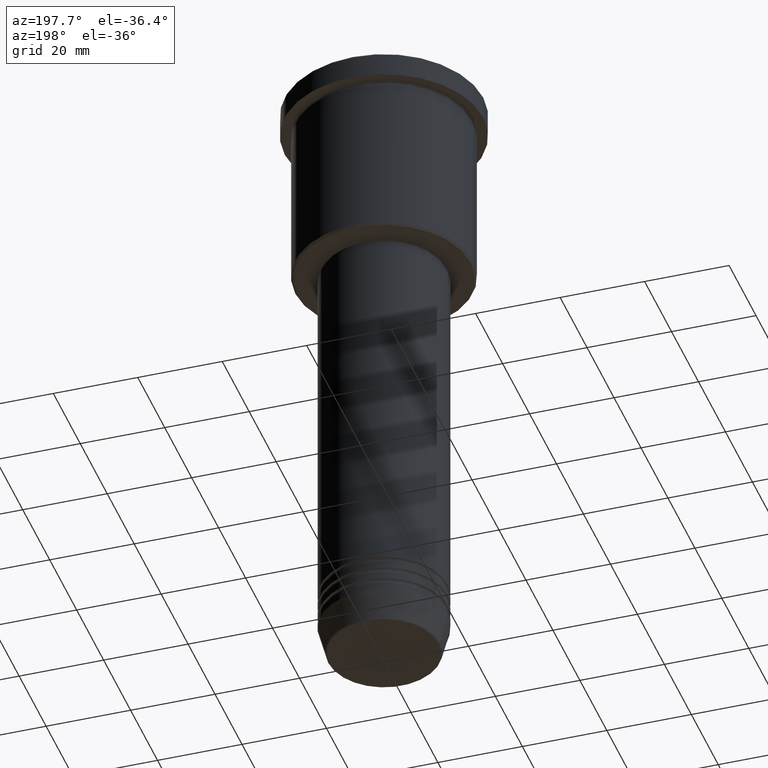
[diagram: clean part render]
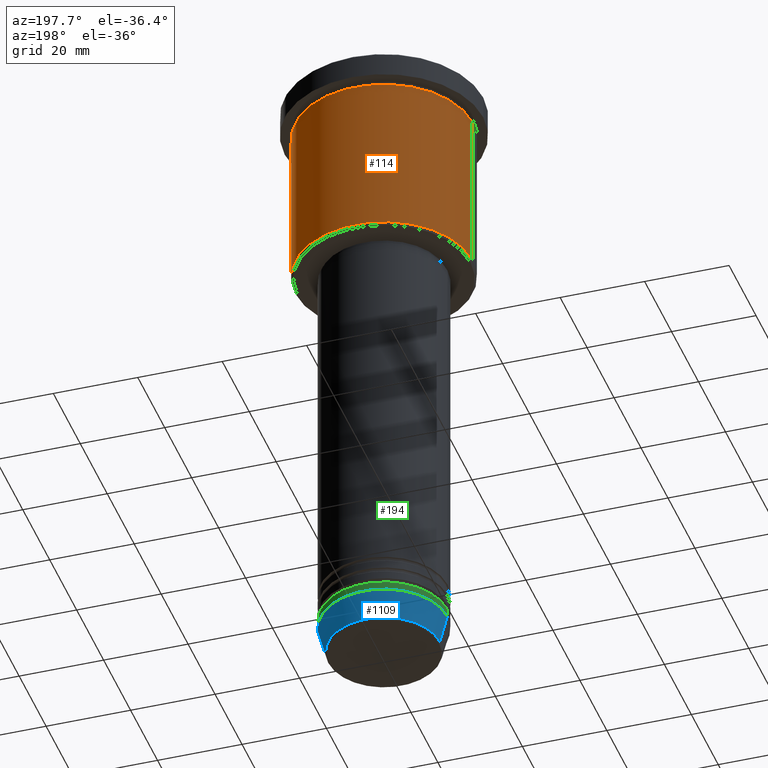
[diagram: same view with three faces highlighted in distinct colors, each labeled with its STEP entity id]
A machine part, auxiliary view with three faces highlighted in distinct colors.
Their STEP definitions:

[orange] entity #114 — the highlighted cylindrical surface (partial cylindrical patch) has radius 21 mm, axis along (-0, -0, 1).
#1 = CARTESIAN_POINT ( 'NONE',  ( 0.000000000000000000, 0.000000000000000000, -45.50000000000001421 ) ) ;
#15 = DIRECTION ( 'NONE',  ( -0.000000000000000000, -0.000000000000000000, 1.000000000000000000 ) ) ;
#23 = FACE_OUTER_BOUND ( 'NONE', #1059, .T. ) ;
#32 = CIRCLE ( 'NONE', #712, 21.00000000000000000 ) ;
#56 = VECTOR ( 'NONE', #696, 1000.000000000000000 ) ;
#74 = AXIS2_PLACEMENT_3D ( 'NONE', #1, #110, #757 ) ;
#110 = DIRECTION ( 'NONE',  ( -0.000000000000000000, -0.000000000000000000, 1.000000000000000000 ) ) ;
#114 = ADVANCED_FACE ( 'NONE', ( #23 ), #392, .T. ) ;
#124 = ORIENTED_EDGE ( 'NONE', *, *, #597, .T. ) ;
#147 = EDGE_CURVE ( 'NONE', #851, #491, #812, .T. ) ;
#180 = DIRECTION ( 'NONE',  ( 1.000000000000000000, 0.000000000000000000, 0.000000000000000000 ) ) ;
#192 = CARTESIAN_POINT ( 'NONE',  ( 21.00000000000000000, 0.000000000000000000, -45.50000000000001421 ) ) ;
#351 = CARTESIAN_POINT ( 'NONE',  ( -21.00000000000000000, 2.571758278209441661E-15, 0.000000000000000000 ) ) ;
#359 = CARTESIAN_POINT ( 'NONE',  ( 21.00000000000000000, 0.000000000000000000, 0.000000000000000000 ) ) ;
#392 = CYLINDRICAL_SURFACE ( 'NONE', #1079, 21.00000000000000000 ) ;
#408 = CARTESIAN_POINT ( 'NONE',  ( 0.000000000000000000, 0.000000000000000000, 0.000000000000000000 ) ) ;
#419 = EDGE_CURVE ( 'NONE', #491, #531, #32, .T. ) ;
#491 = VERTEX_POINT ( 'NONE', #1073 ) ;
#513 = ORIENTED_EDGE ( 'NONE', *, *, #419, .F. ) ;
#531 = VERTEX_POINT ( 'NONE', #733 ) ;
#570 = CARTESIAN_POINT ( 'NONE',  ( 0.000000000000000000, 0.000000000000000000, -6.999999999999994671 ) ) ;
#597 = EDGE_CURVE ( 'NONE', #851, #975, #601, .T. ) ;
#601 = CIRCLE ( 'NONE', #74, 21.00000000000000000 ) ;
#696 = DIRECTION ( 'NONE',  ( -0.000000000000000000, -0.000000000000000000, 1.000000000000000000 ) ) ;
#712 = AXIS2_PLACEMENT_3D ( 'NONE', #570, #922, #180 ) ;
#733 = CARTESIAN_POINT ( 'NONE',  ( -21.00000000000000000, 2.571758278209441661E-15, -6.999999999999994671 ) ) ;
#757 = DIRECTION ( 'NONE',  ( -1.000000000000000000, 0.000000000000000000, 0.000000000000000000 ) ) ;
#782 = ORIENTED_EDGE ( 'NONE', *, *, #1003, .T. ) ;
#797 = DIRECTION ( 'NONE',  ( -0.000000000000000000, -0.000000000000000000, 1.000000000000000000 ) ) ;
#812 = LINE ( 'NONE', #359, #56 ) ;
#851 = VERTEX_POINT ( 'NONE', #192 ) ;
#922 = DIRECTION ( 'NONE',  ( -0.000000000000000000, -0.000000000000000000, 1.000000000000000000 ) ) ;
#975 = VERTEX_POINT ( 'NONE', #981 ) ;
#981 = CARTESIAN_POINT ( 'NONE',  ( -21.00000000000000000, 2.571758278209441661E-15, -45.50000000000001421 ) ) ;
#1003 = EDGE_CURVE ( 'NONE', #975, #531, #1168, .T. ) ;
#1052 = ORIENTED_EDGE ( 'NONE', *, *, #147, .F. ) ;
#1059 = EDGE_LOOP ( 'NONE', ( #124, #782, #513, #1052 ) ) ;
#1073 = CARTESIAN_POINT ( 'NONE',  ( 21.00000000000000000, 0.000000000000000000, -6.999999999999994671 ) ) ;
#1076 = VECTOR ( 'NONE', #797, 1000.000000000000000 ) ;
#1079 = AXIS2_PLACEMENT_3D ( 'NONE', #408, #15, #1169 ) ;
#1168 = LINE ( 'NONE', #351, #1076 ) ;
#1169 = DIRECTION ( 'NONE',  ( 1.000000000000000000, 0.000000000000000000, 0.000000000000000000 ) ) ;

[blue] entity #1109 — the highlighted conical surface has half-angle 15 deg.
#24 = VERTEX_POINT ( 'NONE', #758 ) ;
#26 = CARTESIAN_POINT ( 'NONE',  ( 15.00000000000000000, 0.000000000000000000, -144.0000000000000000 ) ) ;
#72 = VECTOR ( 'NONE', #764, 1000.000000000000000 ) ;
#111 = ORIENTED_EDGE ( 'NONE', *, *, #272, .F. ) ;
#131 = VERTEX_POINT ( 'NONE', #511 ) ;
#140 = ORIENTED_EDGE ( 'NONE', *, *, #547, .T. ) ;
#234 = EDGE_LOOP ( 'NONE', ( #140, #1013, #111, #785 ) ) ;
#267 = EDGE_CURVE ( 'NONE', #24, #660, #957, .T. ) ;
#272 = EDGE_CURVE ( 'NONE', #660, #131, #402, .T. ) ;
#281 = AXIS2_PLACEMENT_3D ( 'NONE', #665, #468, #1002 ) ;
#290 = CARTESIAN_POINT ( 'NONE',  ( 0.000000000000000000, 0.000000000000000000, -144.0000000000000000 ) ) ;
#387 = CARTESIAN_POINT ( 'NONE',  ( 15.00000000000000000, 0.000000000000000000, -144.0000000000000000 ) ) ;
#396 = DIRECTION ( 'NONE',  ( 1.000000000000000000, 0.000000000000000000, 0.000000000000000000 ) ) ;
#402 = CIRCLE ( 'NONE', #744, 15.00000000000000000 ) ;
#462 = CARTESIAN_POINT ( 'NONE',  ( -13.22365507213720370, 1.728200442216589175E-15, -150.6294095225512137 ) ) ;
#468 = DIRECTION ( 'NONE',  ( -0.000000000000000000, -0.000000000000000000, 1.000000000000000000 ) ) ;
#473 = FACE_OUTER_BOUND ( 'NONE', #234, .T. ) ;
#506 = DIRECTION ( 'NONE',  ( -0.000000000000000000, -0.000000000000000000, 1.000000000000000000 ) ) ;
#511 = CARTESIAN_POINT ( 'NONE',  ( -15.00000000000000000, 1.836970198721029589E-15, -144.0000000000000000 ) ) ;
#547 = EDGE_CURVE ( 'NONE', #24, #550, #561, .T. ) ;
#550 = VERTEX_POINT ( 'NONE', #462 ) ;
#561 = CIRCLE ( 'NONE', #1144, 13.22365507213720370 ) ;
#649 = DIRECTION ( 'NONE',  ( -0.000000000000000000, -0.000000000000000000, 1.000000000000000000 ) ) ;
#660 = VERTEX_POINT ( 'NONE', #387 ) ;
#665 = CARTESIAN_POINT ( 'NONE',  ( 0.000000000000000000, 0.000000000000000000, -144.0000000000000000 ) ) ;
#744 = AXIS2_PLACEMENT_3D ( 'NONE', #290, #506, #396 ) ;
#758 = CARTESIAN_POINT ( 'NONE',  ( 13.22365507213720370, 0.000000000000000000, -150.6294095225512137 ) ) ;
#764 = DIRECTION ( 'NONE',  ( 0.2588190451025209615, 0.000000000000000000, 0.9659258262890682012 ) ) ;
#785 = ORIENTED_EDGE ( 'NONE', *, *, #267, .F. ) ;
#811 = DIRECTION ( 'NONE',  ( -0.2588190451025209615, 3.169619151431767406E-17, 0.9659258262890682012 ) ) ;
#838 = VECTOR ( 'NONE', #811, 1000.000000000000000 ) ;
#841 = CONICAL_SURFACE ( 'NONE', #281, 15.00000000000000000, 0.2617993877991496299 ) ;
#865 = CARTESIAN_POINT ( 'NONE',  ( -15.00000000000000000, 1.836970198721029589E-15, -144.0000000000000000 ) ) ;
#918 = DIRECTION ( 'NONE',  ( 1.000000000000000000, 0.000000000000000000, 0.000000000000000000 ) ) ;
#954 = EDGE_CURVE ( 'NONE', #550, #131, #1130, .T. ) ;
#957 = LINE ( 'NONE', #26, #72 ) ;
#1002 = DIRECTION ( 'NONE',  ( 1.000000000000000000, 0.000000000000000000, 0.000000000000000000 ) ) ;
#1013 = ORIENTED_EDGE ( 'NONE', *, *, #954, .T. ) ;
#1024 = CARTESIAN_POINT ( 'NONE',  ( 0.000000000000000000, 0.000000000000000000, -150.6294095225512137 ) ) ;
#1109 = ADVANCED_FACE ( 'NONE', ( #473 ), #841, .T. ) ;
#1130 = LINE ( 'NONE', #865, #838 ) ;
#1144 = AXIS2_PLACEMENT_3D ( 'NONE', #1024, #649, #918 ) ;

[green] entity #194 — the highlighted cylindrical surface (partial cylindrical patch) has radius 15 mm, axis along (-0, -0, 1).
#2 = CARTESIAN_POINT ( 'NONE',  ( 15.00000000000000000, 0.000000000000000000, 0.000000000000000000 ) ) ;
#16 = EDGE_CURVE ( 'NONE', #456, #807, #236, .T. ) ;
#83 = FACE_OUTER_BOUND ( 'NONE', #1037, .T. ) ;
#131 = VERTEX_POINT ( 'NONE', #511 ) ;
#194 = ADVANCED_FACE ( 'NONE', ( #83 ), #1175, .T. ) ;
#216 = ORIENTED_EDGE ( 'NONE', *, *, #1125, .F. ) ;
#232 = LINE ( 'NONE', #1053, #880 ) ;
#236 = CIRCLE ( 'NONE', #789, 15.00000000000000000 ) ;
#266 = DIRECTION ( 'NONE',  ( 1.000000000000000000, 0.000000000000000000, 0.000000000000000000 ) ) ;
#272 = EDGE_CURVE ( 'NONE', #660, #131, #402, .T. ) ;
#290 = CARTESIAN_POINT ( 'NONE',  ( 0.000000000000000000, 0.000000000000000000, -144.0000000000000000 ) ) ;
#368 = CARTESIAN_POINT ( 'NONE',  ( 0.000000000000000000, 0.000000000000000000, 0.000000000000000000 ) ) ;
#387 = CARTESIAN_POINT ( 'NONE',  ( 15.00000000000000000, 0.000000000000000000, -144.0000000000000000 ) ) ;
#396 = DIRECTION ( 'NONE',  ( 1.000000000000000000, 0.000000000000000000, 0.000000000000000000 ) ) ;
#399 = AXIS2_PLACEMENT_3D ( 'NONE', #368, #737, #266 ) ;
#402 = CIRCLE ( 'NONE', #744, 15.00000000000000000 ) ;
#414 = DIRECTION ( 'NONE',  ( 1.000000000000000000, 0.000000000000000000, 0.000000000000000000 ) ) ;
#420 = DIRECTION ( 'NONE',  ( -0.000000000000000000, -0.000000000000000000, 1.000000000000000000 ) ) ;
#456 = VERTEX_POINT ( 'NONE', #652 ) ;
#506 = DIRECTION ( 'NONE',  ( -0.000000000000000000, -0.000000000000000000, 1.000000000000000000 ) ) ;
#511 = CARTESIAN_POINT ( 'NONE',  ( -15.00000000000000000, 1.836970198721029589E-15, -144.0000000000000000 ) ) ;
#652 = CARTESIAN_POINT ( 'NONE',  ( 15.00000000000000000, 0.000000000000000000, -142.0000000000000000 ) ) ;
#659 = CARTESIAN_POINT ( 'NONE',  ( -15.00000000000000000, 1.836970198721029589E-15, -142.0000000000000000 ) ) ;
#660 = VERTEX_POINT ( 'NONE', #387 ) ;
#675 = VECTOR ( 'NONE', #919, 1000.000000000000000 ) ;
#737 = DIRECTION ( 'NONE',  ( -0.000000000000000000, -0.000000000000000000, 1.000000000000000000 ) ) ;
#744 = AXIS2_PLACEMENT_3D ( 'NONE', #290, #506, #396 ) ;
#767 = CARTESIAN_POINT ( 'NONE',  ( 0.000000000000000000, 0.000000000000000000, -142.0000000000000000 ) ) ;
#789 = AXIS2_PLACEMENT_3D ( 'NONE', #767, #420, #414 ) ;
#807 = VERTEX_POINT ( 'NONE', #659 ) ;
#850 = EDGE_CURVE ( 'NONE', #131, #807, #232, .T. ) ;
#877 = ORIENTED_EDGE ( 'NONE', *, *, #16, .F. ) ;
#880 = VECTOR ( 'NONE', #969, 1000.000000000000000 ) ;
#919 = DIRECTION ( 'NONE',  ( -0.000000000000000000, -0.000000000000000000, 1.000000000000000000 ) ) ;
#935 = LINE ( 'NONE', #2, #675 ) ;
#936 = ORIENTED_EDGE ( 'NONE', *, *, #272, .T. ) ;
#942 = ORIENTED_EDGE ( 'NONE', *, *, #850, .T. ) ;
#969 = DIRECTION ( 'NONE',  ( -0.000000000000000000, -0.000000000000000000, 1.000000000000000000 ) ) ;
#1037 = EDGE_LOOP ( 'NONE', ( #936, #942, #877, #216 ) ) ;
#1053 = CARTESIAN_POINT ( 'NONE',  ( -15.00000000000000000, 1.836970198721029589E-15, 0.000000000000000000 ) ) ;
#1125 = EDGE_CURVE ( 'NONE', #660, #456, #935, .T. ) ;
#1175 = CYLINDRICAL_SURFACE ( 'NONE', #399, 15.00000000000000000 ) ;